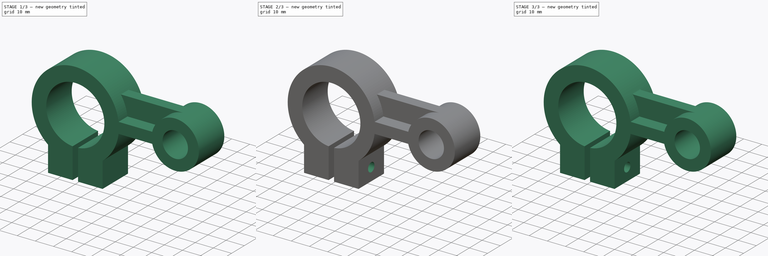
[diagram: build sequence overview — one tinted view per stage of 3, left to right]
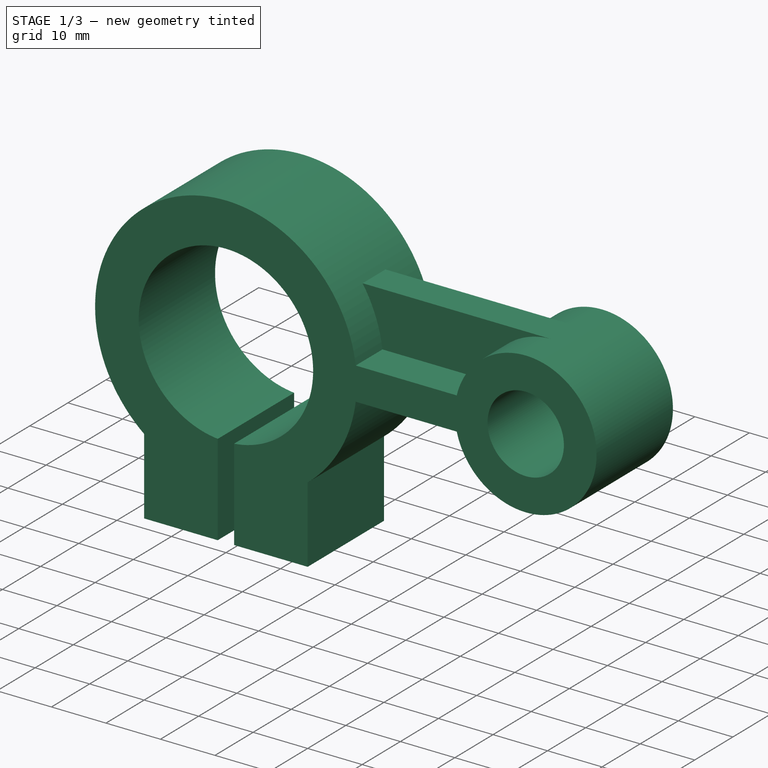
[diagram: stage 1 of 3 — iso view after this stage's code; geometry added in this stage tinted green]
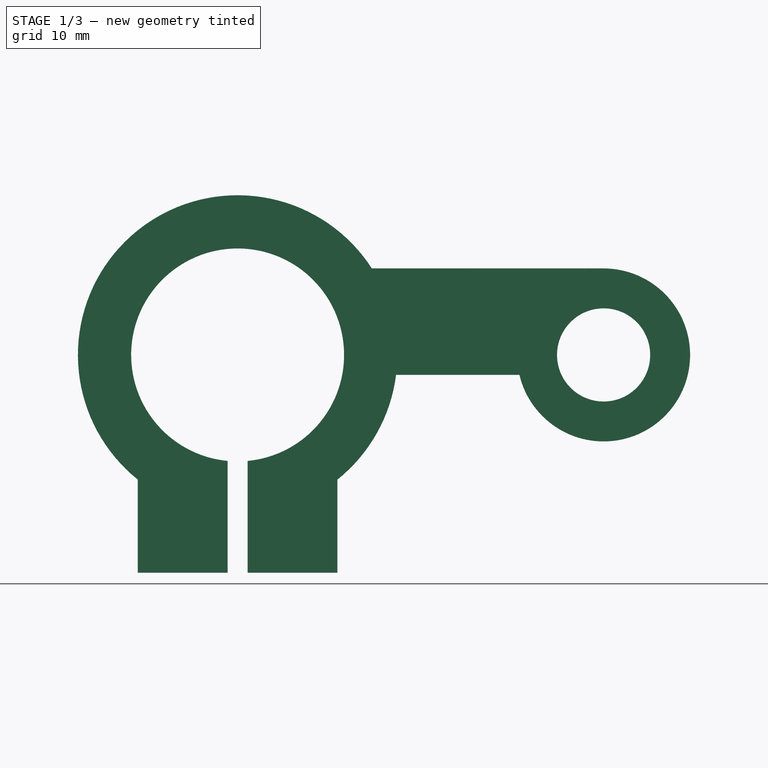
[diagram: stage 1 of 3 — front view after this stage's code; geometry added in this stage tinted green]
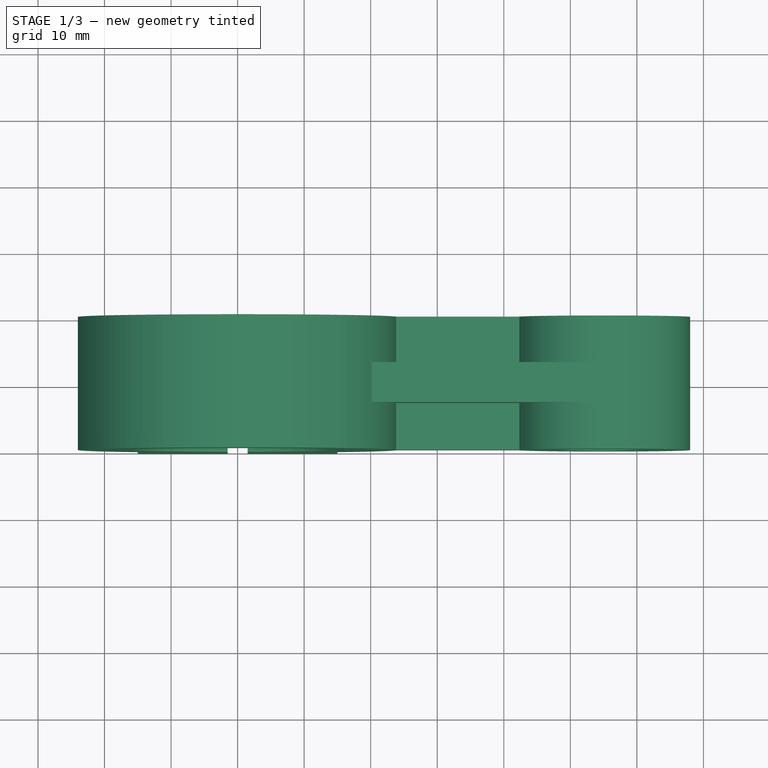
[diagram: stage 1 of 3 — top view after this stage's code; geometry added in this stage tinted green]
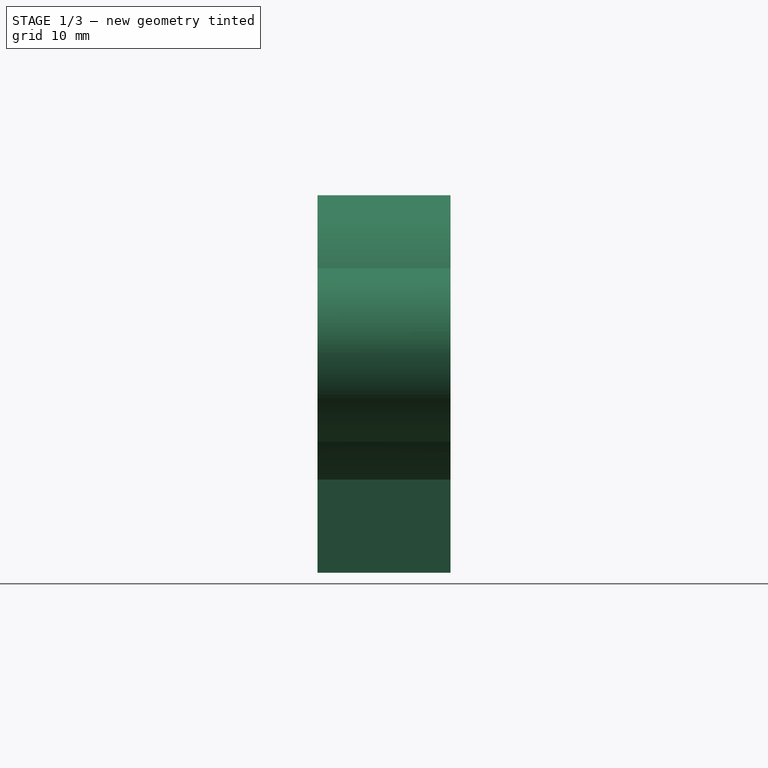
[diagram: stage 1 of 3 — right view after this stage's code; geometry added in this stage tinted green]
FCSTD DOCUMENT  (FreeCAD 0.16R)
Label: Fig 4.17 Final
License: All rights reserved
LicenseURL: http://en.wikipedia.org/wiki/All_rights_reserved
objects: Sketcher::SketchObject×3, PartDesign::Pad×2, PartDesign::Pocket×1, Part::MultiFuse×1, PartDesign::Fillet×1
note: 11 computed .brp shape members not serialized (recipe doc carries the construction recipe); baked Part::Feature solids carry a one-line shape summary decoded from their .brp

FEATURE [Sketcher::SketchObject] Sketch
  Placement = pos=(0,0,0) rot=(-1,0,0;4.71239rad)
  sketch-geometry (13):
    g0: ArcOfCircle CenterX=0 CenterY=0 CenterZ=0 NormalX=0 NormalY=0 NormalZ=1 Radius=16 StartAngle=4.80628 EndAngle=10.9017
    g1: LineSegment StartX=15 StartY=-18.735 StartZ=0 EndX=15 EndY=-32.735 EndZ=0
    g2: LineSegment StartX=15 StartY=-32.735 StartZ=0 EndX=1.5 EndY=-32.735 EndZ=0
    g3: LineSegment StartX=-15 StartY=-32.735 StartZ=0 EndX=-15 EndY=-18.735 EndZ=0
    g4: LineSegment StartX=1.5 StartY=-15.9295 StartZ=0 EndX=1.5 EndY=-32.735 EndZ=0
    g5: LineSegment StartX=-1.5 StartY=-32.735 StartZ=0 EndX=-1.5 EndY=-15.9295 EndZ=0
    g6: LineSegment StartX=-1.5 StartY=-32.735 StartZ=0 EndX=-15 EndY=-32.735 EndZ=0
    g7: ArcOfCircle CenterX=0 CenterY=0 CenterZ=0 NormalX=0 NormalY=0 NormalZ=1 Radius=24 StartAngle=5.38752 EndAngle=6.15786
    g8: ArcOfCircle CenterX=55 CenterY=0 CenterZ=0 NormalX=0 NormalY=0 NormalZ=1 Radius=13 StartAngle=3.37446 EndAngle=9.19191
    g9: Circle CenterX=55 CenterY=0 CenterZ=0 NormalX=0 NormalY=0 NormalZ=1 Radius=7
    g10: LineSegment StartX=23.8118 StartY=3 StartZ=0 EndX=42.3509 EndY=3 EndZ=0
    g11: LineSegment StartX=42.3509 StartY=-3 StartZ=0 EndX=23.8118 EndY=-3 EndZ=0
    g12: ArcOfCircle CenterX=0 CenterY=0 CenterZ=0 NormalX=0 NormalY=0 NormalZ=1 Radius=24 StartAngle=0.125328 EndAngle=4.03726
  constraints (40):
    c: Coincident(g0,g-1)
    c: Radius(g0) = 16
    c: Coincident(g1,g2)
    c: Coincident(g6,g3)
    c: Horizontal(g2)
    c: Vertical(g1)
    c: Vertical(g3)
    c: DistanceX(g6,g2) = 30
    c: DistanceY(g1,g1) = 14
    c: Vertical(g4)
    c: Vertical(g5)
    c: Coincident(g0,g4)
    c: Coincident(g0,g5)
    c: Coincident(g2,g4)
    c: Coincident(g6,g5)
    c: Tangent(g2,g6)
    c: PointOnObject(g12,g3)
    c: Symmetric(g0,g0,g-2)
    c: Symmetric(g1,g3,g-2)
    c: Coincident(g1,g7)
    c: Coincident(g0,g7)
    c: Coincident(g3,g12)
    c: DistanceX(g5,g2) = 3
    c: Radius(g7) = 24
    c: PointOnObject(g8,g-1)
    c: Coincident(g9,g8)
    c: Radius(g9) = 7
    c: Radius(g8) = 13
    c: DistanceX(g-1,g8) = 55
    c: Horizontal(g10)
    c: Horizontal(g11)
    c: Equal(g7,g12)
    c: Coincident(g7,g11)
    c: Coincident(g7,g12)
    c: PointOnObject(g8,g10)
    c: DistanceY(g7,g10) = 6
    c: Symmetric(g7,g10,g-1)
    c: Coincident(g8,g11)
    c: Coincident(g10,g12)
    c: Coincident(g8,g10)
FEATURE [PartDesign::Pad] Pad
  Length = 20
  Length2 = 100
  Midplane = true
  Placement = pos=(0,0,0) rot=(-1,0,0;4.71239rad)
  Sketch = -> Sketch
  Type = 0
FEATURE [Sketcher::SketchObject] Sketch002
  Placement = pos=(0,0,0) rot=(-1,0,0;4.71239rad)
  sketch-geometry (4):
    g0: LineSegment StartX=23.8118 StartY=3 StartZ=0 EndX=42.3509 EndY=3 EndZ=0
    g1: ArcOfCircle CenterX=0 CenterY=0 CenterZ=0 NormalX=0 NormalY=0 NormalZ=1 Radius=24 StartAngle=0.125328 EndAngle=0.572419
    g2: ArcOfCircle CenterX=55 CenterY=0 CenterZ=0 NormalX=0 NormalY=0 NormalZ=1 Radius=13 StartAngle=1.5708 EndAngle=2.90872
    g3: LineSegment StartX=20.1742 StartY=13 StartZ=0 EndX=55 EndY=13 EndZ=0
  constraints (13):
    c: Horizontal(g0)
    c: Coincident(g0,g1)
    c: PointOnObject(g2,g-1)
    c: Coincident(g2,g0)
    c: DistanceX(g-1,g2) = 55
    c: Coincident(g1,g-1)
    c: Radius(g2) = 13
    c: Radius(g1) = 24
    c: DistanceY(g2,g0) = 3
    c: DistanceX(g2,g2) = 0
    c: Horizontal(g3)
    c: Coincident(g2,g3)
    c: Coincident(g3,g1)
FEATURE [PartDesign::Pad] Pad001
  Length = 6
  Length2 = 100
  Midplane = true
  Placement = pos=(0,0,0) rot=(-1,0,0;4.71239rad)
  Sketch = -> Sketch002
  Type = 0
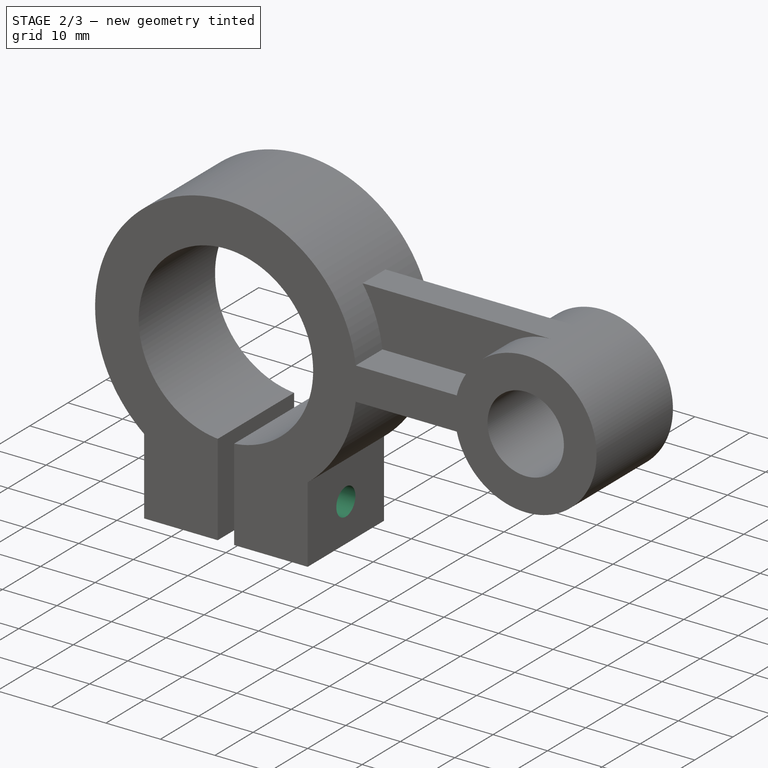
[diagram: stage 2 of 3 — iso view after this stage's code; geometry added in this stage tinted green]
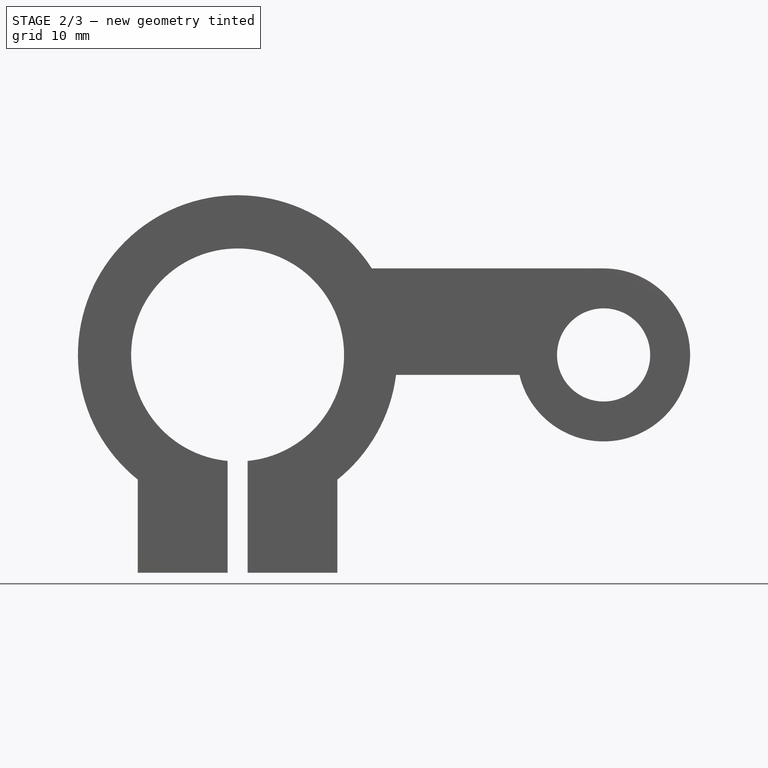
[diagram: stage 2 of 3 — front view after this stage's code; geometry added in this stage tinted green]
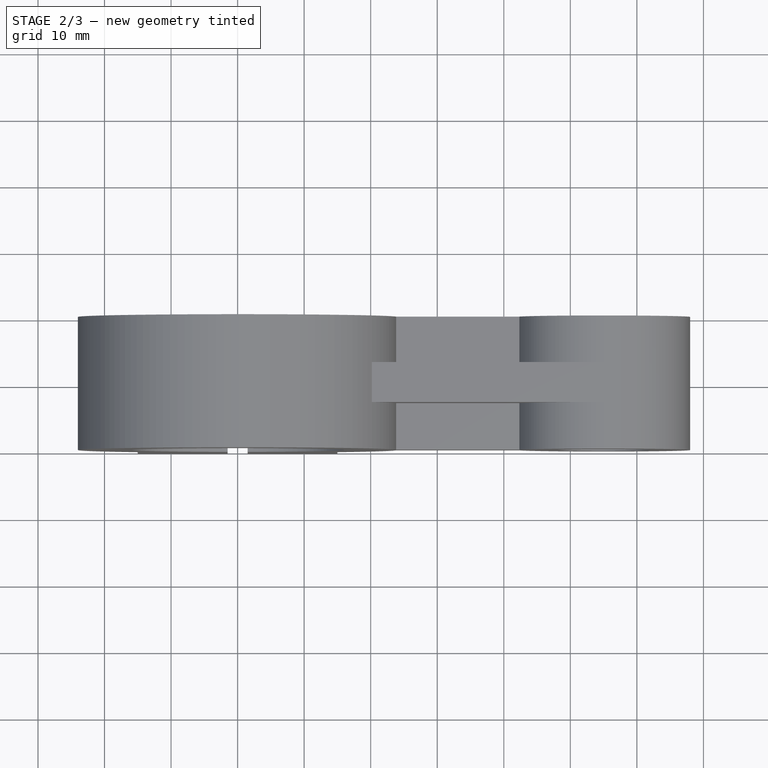
[diagram: stage 2 of 3 — top view after this stage's code; geometry added in this stage tinted green]
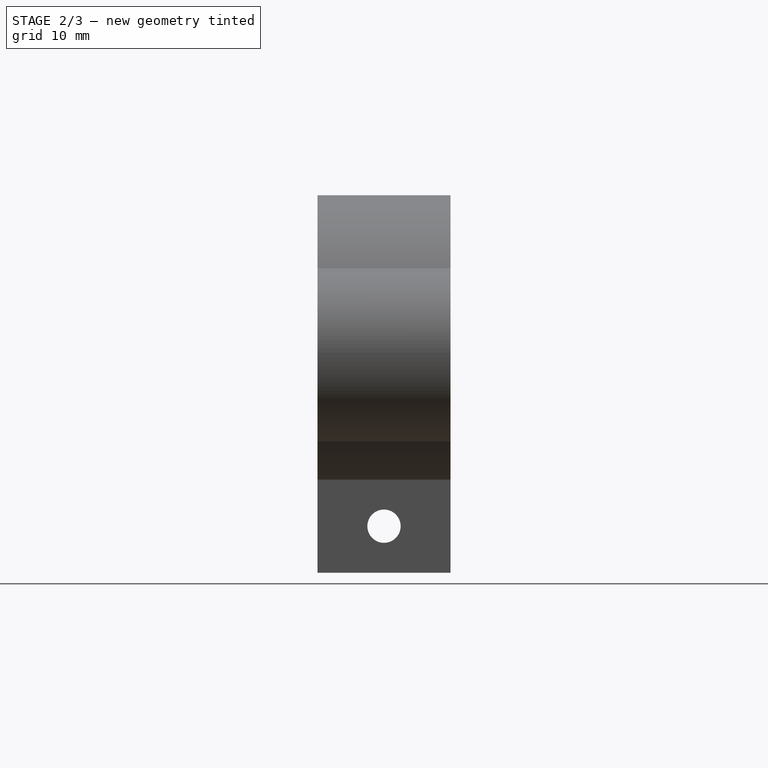
[diagram: stage 2 of 3 — right view after this stage's code; geometry added in this stage tinted green]
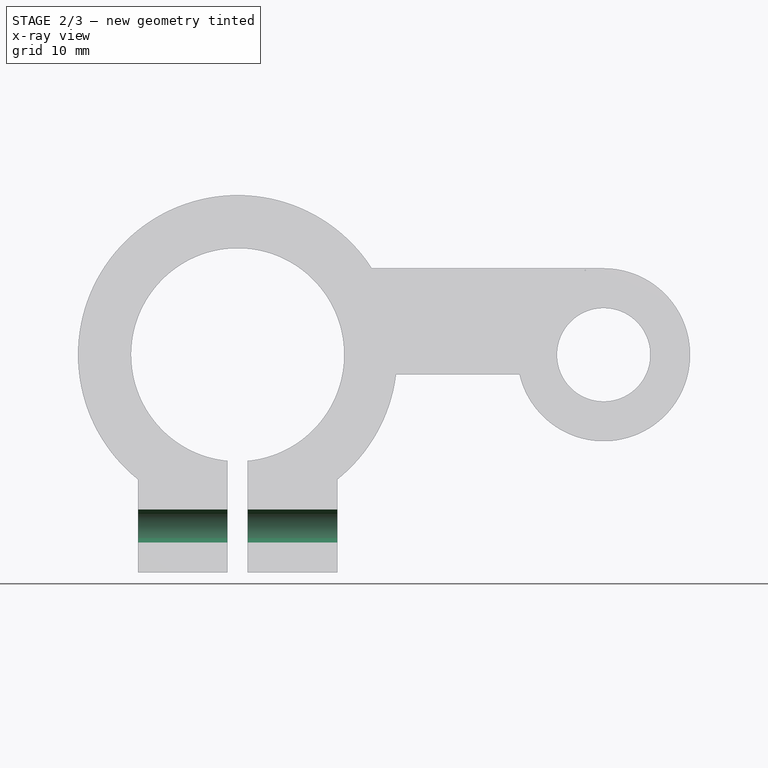
[diagram: stage 2 of 3 — x-ray composite at the front view; earlier geometry ghosted, this stage's added geometry solid]
FEATURE [Sketcher::SketchObject] Sketch001
  ExternalGeometry = -> [Pad]
  Placement = pos=(15,0,0) rot=(0.707107,0,0.707107;3.14159rad)
  Support = -> Pad [Face1]
  sketch-geometry (1):
    g0: Circle CenterX=-25.735 CenterY=0 CenterZ=0 NormalX=0 NormalY=0 NormalZ=1 Radius=2.5
  constraints (3):
    c: PointOnObject(g0,g-1)
    c: Radius(g0) = 2.5
    c: DistanceX(g-3,g0) = 7
FEATURE [PartDesign::Pocket] Pocket
  Length = 5
  Placement = pos=(0,0,0) rot=(-1,0,0;4.71239rad)
  Sketch = -> Sketch001
  Type = 1
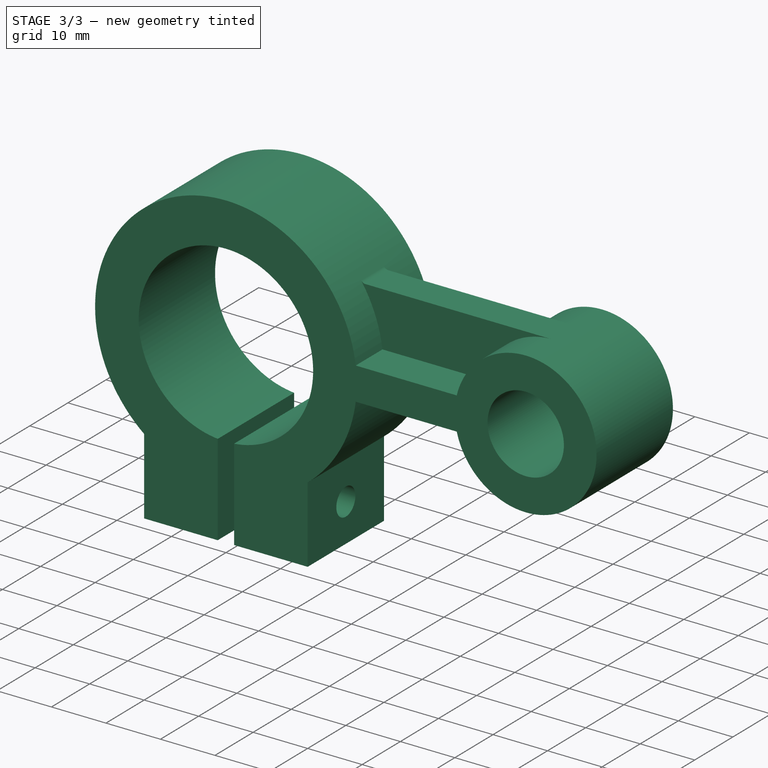
[diagram: stage 3 of 3 — iso view after this stage's code; geometry added in this stage tinted green]
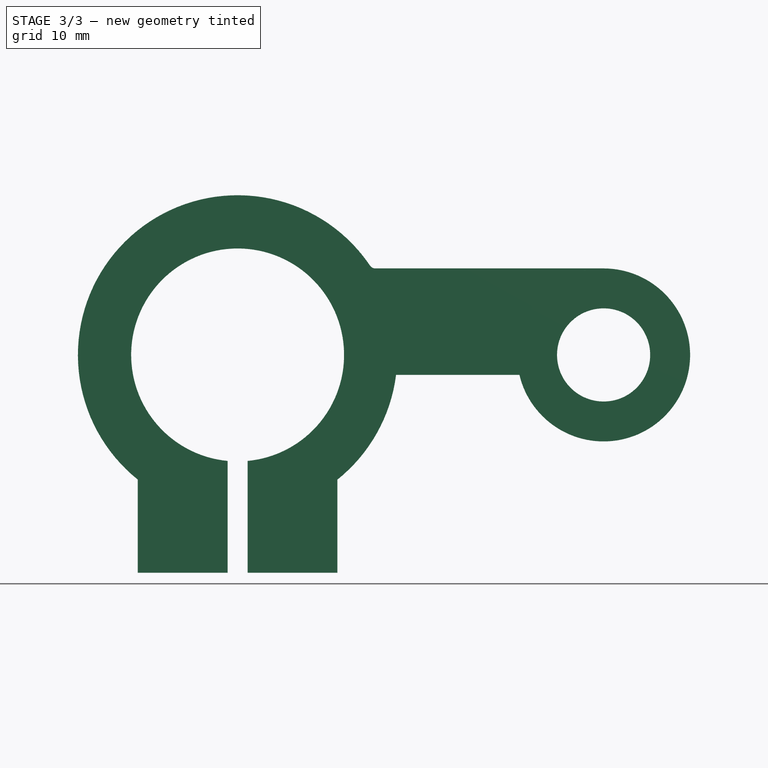
[diagram: stage 3 of 3 — front view after this stage's code; geometry added in this stage tinted green]
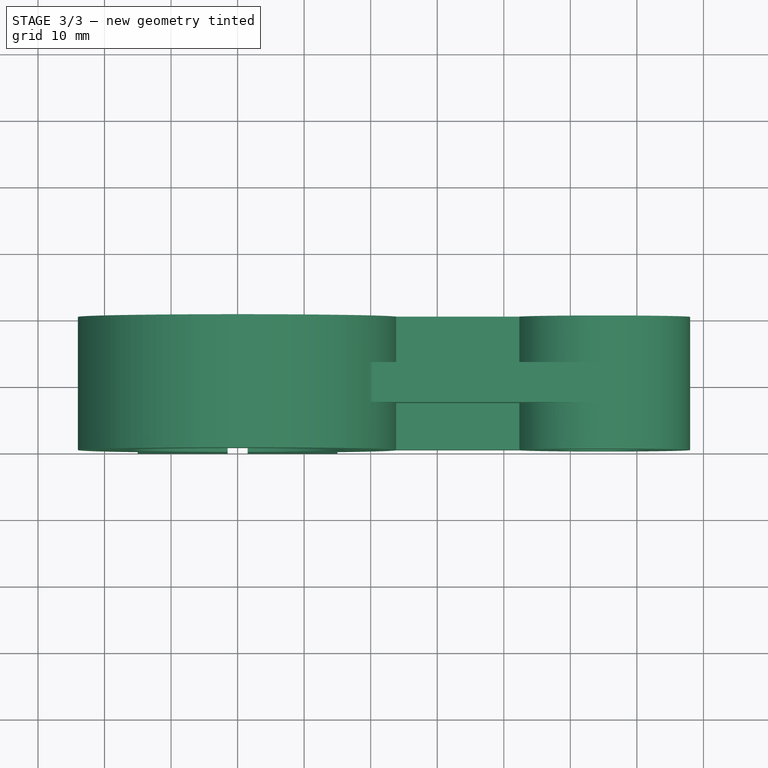
[diagram: stage 3 of 3 — top view after this stage's code; geometry added in this stage tinted green]
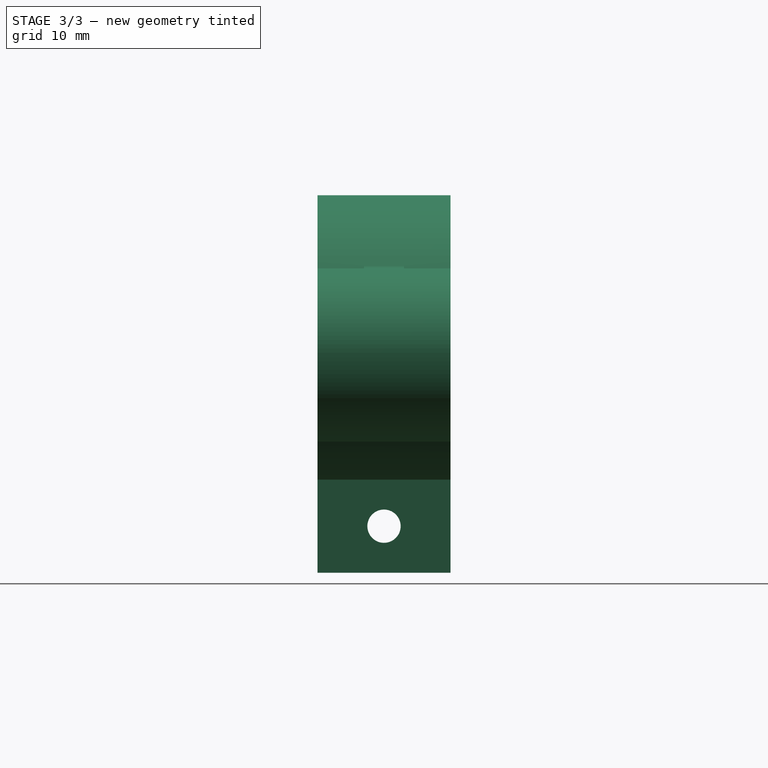
[diagram: stage 3 of 3 — right view after this stage's code; geometry added in this stage tinted green]
FEATURE [Part::MultiFuse] Fusion
  Shapes = -> [Pad001,Pocket]
FEATURE [PartDesign::Fillet] Fillet
  Base = -> Fusion [Edge44]
  Radius = 1
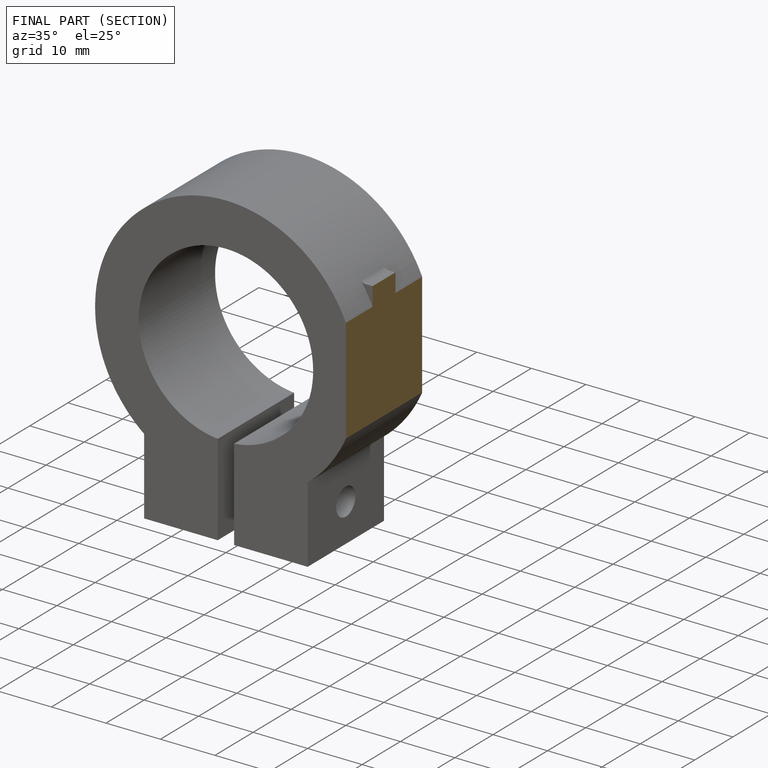
[diagram: finished part — half-section view (interior)]
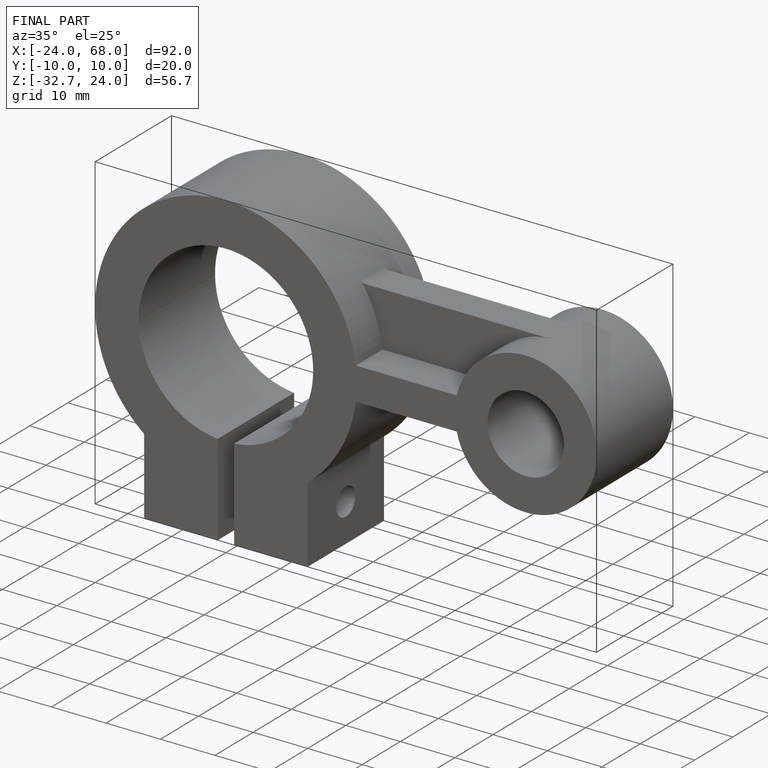
[diagram: finished part — iso view with bounding-box wireframe]
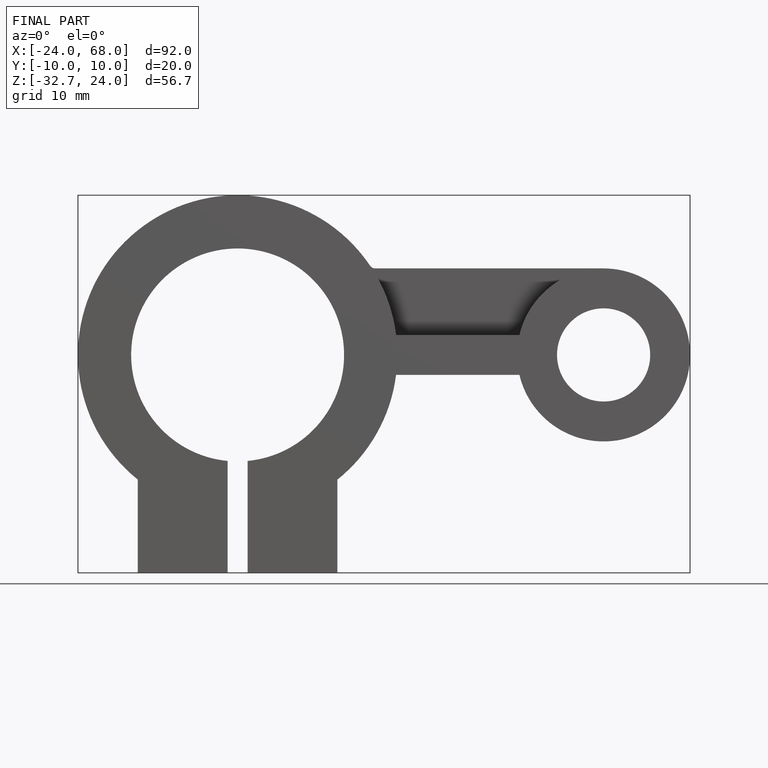
[diagram: finished part — front view with bounding-box wireframe]
